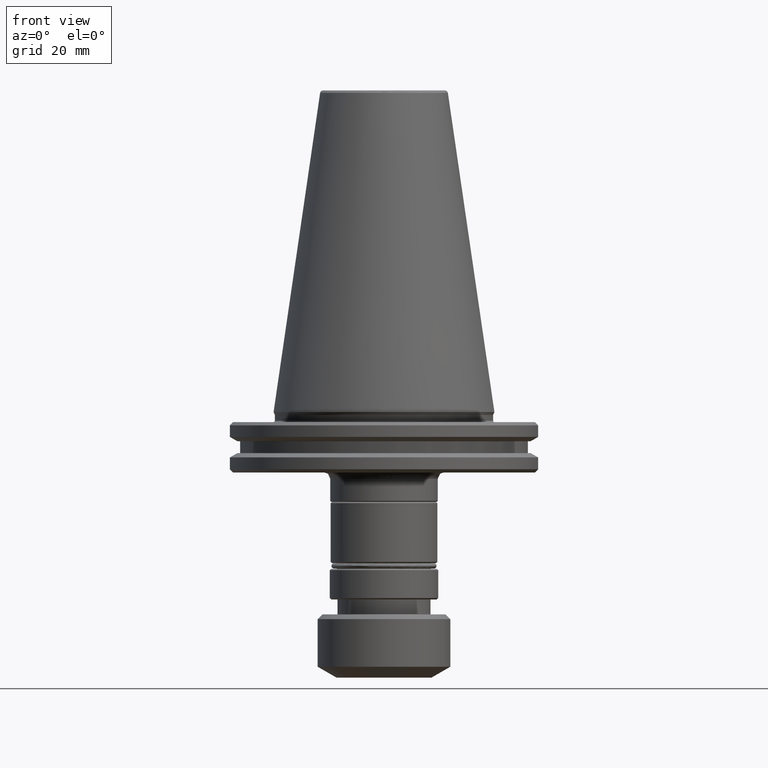
[diagram: clean part render]
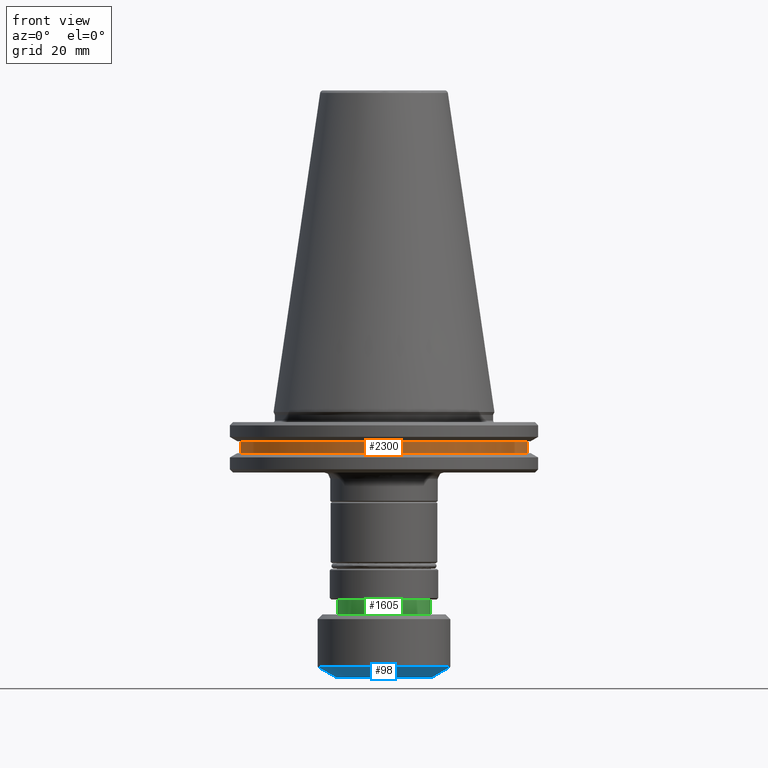
[diagram: same view with three faces highlighted in distinct colors, each labeled with its STEP entity id]
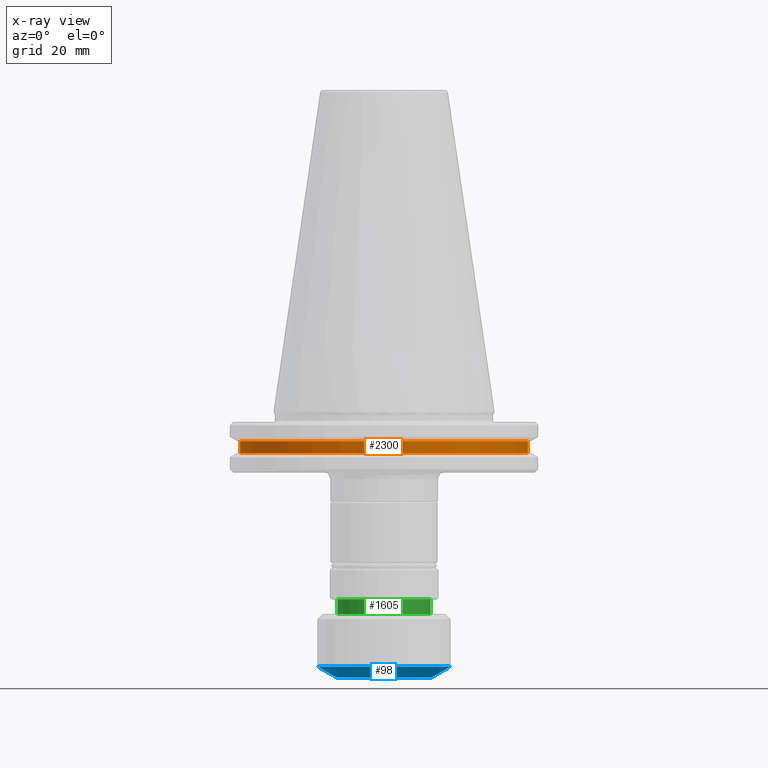
[diagram: x-ray of the same camera — body ghosted, the three highlighted faces saturated]
A machine part, front view with three faces highlighted in distinct colors.
The next image is the same camera in x-ray (body ghosted, the three faces saturated) — at least one of them is partly hidden behind the body in this view.
Their STEP definitions:

[orange] entity #2300 — the highlighted cylindrical surface (partial cylindrical patch) has radius 45.5 mm, axis along (0, 0, 1).
#62 = DIRECTION ( 'NONE',  ( 0.0000000000000000000, 0.0000000000000000000, 1.000000000000000000 ) ) ;
#74 = CARTESIAN_POINT ( 'NONE',  ( 45.50000000000000000, 0.0000000000000000000, 113.5216080541959500 ) ) ;
#115 = DIRECTION ( 'NONE',  ( 0.0000000000000000000, 0.0000000000000000000, 1.000000000000000000 ) ) ;
#148 = CARTESIAN_POINT ( 'NONE',  ( 0.0000000000000000000, 0.0000000000000000000, -9.224999999999926800 ) ) ;
#169 = VERTEX_POINT ( 'NONE', #2278 ) ;
#293 = DIRECTION ( 'NONE',  ( 0.0000000000000000000, 0.0000000000000000000, 1.000000000000000000 ) ) ;
#297 = CARTESIAN_POINT ( 'NONE',  ( -45.50000000000000000, 5.572142936120457100E-015, 113.5216080541959500 ) ) ;
#391 = EDGE_LOOP ( 'NONE', ( #785, #1447, #1182, #2147 ) ) ;
#699 = LINE ( 'NONE', #74, #1954 ) ;
#703 = EDGE_CURVE ( 'NONE', #169, #1968, #1484, .T. ) ;
#757 = VERTEX_POINT ( 'NONE', #940 ) ;
#759 = CYLINDRICAL_SURFACE ( 'NONE', #1958, 45.50000000000000000 ) ;
#785 = ORIENTED_EDGE ( 'NONE', *, *, #1149, .F. ) ;
#940 = CARTESIAN_POINT ( 'NONE',  ( 45.50000000000109400, 0.0000000000000000000, -9.224999999999926800 ) ) ;
#953 = DIRECTION ( 'NONE',  ( 1.000000000000000000, 0.0000000000000000000, 0.0000000000000000000 ) ) ;
#955 = DIRECTION ( 'NONE',  ( -0.0000000000000000000, -0.0000000000000000000, 1.000000000000000000 ) ) ;
#958 = CARTESIAN_POINT ( 'NONE',  ( 0.0000000000000000000, 0.0000000000000000000, -12.97499999999995900 ) ) ;
#1028 = CARTESIAN_POINT ( 'NONE',  ( 45.50000000000109400, 0.0000000000000000000, -12.97499999999995900 ) ) ;
#1149 = EDGE_CURVE ( 'NONE', #169, #2248, #1390, .T. ) ;
#1182 = ORIENTED_EDGE ( 'NONE', *, *, #1325, .T. ) ;
#1193 = FACE_OUTER_BOUND ( 'NONE', #391, .T. ) ;
#1225 = CIRCLE ( 'NONE', #2047, 45.50000000000109400 ) ;
#1283 = DIRECTION ( 'NONE',  ( 1.000000000000000000, 0.0000000000000000000, 0.0000000000000000000 ) ) ;
#1325 = EDGE_CURVE ( 'NONE', #1968, #757, #699, .T. ) ;
#1390 = LINE ( 'NONE', #297, #2240 ) ;
#1419 = AXIS2_PLACEMENT_3D ( 'NONE', #958, #955, #953 ) ;
#1447 = ORIENTED_EDGE ( 'NONE', *, *, #703, .T. ) ;
#1484 = CIRCLE ( 'NONE', #1419, 45.50000000000109400 ) ;
#1707 = DIRECTION ( 'NONE',  ( -0.0000000000000000000, -0.0000000000000000000, 1.000000000000000000 ) ) ;
#1754 = EDGE_CURVE ( 'NONE', #2248, #757, #1225, .T. ) ;
#1823 = CARTESIAN_POINT ( 'NONE',  ( 0.0000000000000000000, 0.0000000000000000000, 113.5216080541959500 ) ) ;
#1875 = DIRECTION ( 'NONE',  ( 1.000000000000000000, 0.0000000000000000000, 0.0000000000000000000 ) ) ;
#1954 = VECTOR ( 'NONE', #62, 1000.000000000000000 ) ;
#1958 = AXIS2_PLACEMENT_3D ( 'NONE', #1823, #115, #1875 ) ;
#1968 = VERTEX_POINT ( 'NONE', #1028 ) ;
#1984 = CARTESIAN_POINT ( 'NONE',  ( -45.50000000000110100, 5.572142936120592000E-015, -9.224999999999926800 ) ) ;
#2047 = AXIS2_PLACEMENT_3D ( 'NONE', #148, #1707, #1283 ) ;
#2147 = ORIENTED_EDGE ( 'NONE', *, *, #1754, .F. ) ;
#2240 = VECTOR ( 'NONE', #293, 1000.000000000000000 ) ;
#2248 = VERTEX_POINT ( 'NONE', #1984 ) ;
#2278 = CARTESIAN_POINT ( 'NONE',  ( -45.50000000000110100, 5.572142936120592000E-015, -12.97499999999995900 ) ) ;
#2300 = ADVANCED_FACE ( 'NONE', ( #1193 ), #759, .T. ) ;

[blue] entity #98 — the highlighted conical surface has half-angle 60 deg.
#25 = AXIS2_PLACEMENT_3D ( 'NONE', #2063, #1750, #1575 ) ;
#81 = CARTESIAN_POINT ( 'NONE',  ( -15.00000000000000000, 2.204364238465235400E-015, -84.00000000000000000 ) ) ;
#87 = EDGE_CURVE ( 'NONE', #1333, #528, #826, .T. ) ;
#90 = ORIENTED_EDGE ( 'NONE', *, *, #287, .T. ) ;
#94 = ORIENTED_EDGE ( 'NONE', *, *, #1062, .F. ) ;
#98 = ADVANCED_FACE ( 'NONE', ( #641 ), #1749, .T. ) ;
#197 = EDGE_CURVE ( 'NONE', #1333, #1640, #1258, .T. ) ;
#287 = EDGE_CURVE ( 'NONE', #1640, #1982, #2316, .T. ) ;
#320 = CARTESIAN_POINT ( 'NONE',  ( 15.00000000000000000, 0.0000000000000000000, -84.00000000000000000 ) ) ;
#325 = DIRECTION ( 'NONE',  ( 1.000000000000000000, 0.0000000000000000000, 0.0000000000000000000 ) ) ;
#326 = DIRECTION ( 'NONE',  ( 0.0000000000000000000, 0.0000000000000000000, 1.000000000000000000 ) ) ;
#327 = CARTESIAN_POINT ( 'NONE',  ( 0.0000000000000000000, 0.0000000000000000000, -80.53589838486220700 ) ) ;
#404 = AXIS2_PLACEMENT_3D ( 'NONE', #534, #1711, #2326 ) ;
#528 = VERTEX_POINT ( 'NONE', #1257 ) ;
#534 = CARTESIAN_POINT ( 'NONE',  ( 0.0000000000000000000, 0.0000000000000000000, -84.00000000000000000 ) ) ;
#619 = VECTOR ( 'NONE', #1748, 1000.000000000000100 ) ;
#641 = FACE_OUTER_BOUND ( 'NONE', #2090, .T. ) ;
#817 = ORIENTED_EDGE ( 'NONE', *, *, #87, .F. ) ;
#826 = LINE ( 'NONE', #1900, #619 ) ;
#855 = CARTESIAN_POINT ( 'NONE',  ( 21.00000000000000400, 0.0000000000000000000, -80.53589838486220700 ) ) ;
#1062 = EDGE_CURVE ( 'NONE', #528, #1982, #1768, .T. ) ;
#1257 = CARTESIAN_POINT ( 'NONE',  ( -21.00000000000000400, 2.571758278209442100E-015, -80.53589838486220700 ) ) ;
#1258 = CIRCLE ( 'NONE', #404, 15.00000000000000000 ) ;
#1333 = VERTEX_POINT ( 'NONE', #81 ) ;
#1336 = ORIENTED_EDGE ( 'NONE', *, *, #197, .T. ) ;
#1547 = DIRECTION ( 'NONE',  ( 0.8660254037844360400, 0.0000000000000000000, 0.5000000000000044400 ) ) ;
#1548 = CARTESIAN_POINT ( 'NONE',  ( 21.00000000000000400, 0.0000000000000000000, -80.53589838486220700 ) ) ;
#1575 = DIRECTION ( 'NONE',  ( 1.000000000000000000, 0.0000000000000000000, 0.0000000000000000000 ) ) ;
#1640 = VERTEX_POINT ( 'NONE', #320 ) ;
#1711 = DIRECTION ( 'NONE',  ( 0.0000000000000000000, -0.0000000000000000000, 1.000000000000000000 ) ) ;
#1748 = DIRECTION ( 'NONE',  ( -0.8660254037844360400, 1.060575238724903600E-016, 0.5000000000000044400 ) ) ;
#1749 = CONICAL_SURFACE ( 'NONE', #25, 21.00000000000000400, 1.047197551196592500 ) ;
#1750 = DIRECTION ( 'NONE',  ( 0.0000000000000000000, -0.0000000000000000000, 1.000000000000000000 ) ) ;
#1768 = CIRCLE ( 'NONE', #1987, 21.00000000000000000 ) ;
#1900 = CARTESIAN_POINT ( 'NONE',  ( -21.00000000000000400, 2.571758278209442100E-015, -80.53589838486220700 ) ) ;
#1931 = VECTOR ( 'NONE', #1547, 1000.000000000000100 ) ;
#1982 = VERTEX_POINT ( 'NONE', #855 ) ;
#1987 = AXIS2_PLACEMENT_3D ( 'NONE', #327, #326, #325 ) ;
#2063 = CARTESIAN_POINT ( 'NONE',  ( 0.0000000000000000000, 0.0000000000000000000, -80.53589838486220700 ) ) ;
#2090 = EDGE_LOOP ( 'NONE', ( #817, #1336, #90, #94 ) ) ;
#2316 = LINE ( 'NONE', #1548, #1931 ) ;
#2326 = DIRECTION ( 'NONE',  ( 1.000000000000000000, 0.0000000000000000000, 0.0000000000000000000 ) ) ;

[green] entity #1605 — the highlighted cylindrical surface (partial cylindrical patch) has radius 14.7 mm, axis along (0, 0, 1).
#100 = ORIENTED_EDGE ( 'NONE', *, *, #2205, .T. ) ;
#227 = CARTESIAN_POINT ( 'NONE',  ( 14.69999999999999900, 0.0000000000000000000, 0.0000000000000000000 ) ) ;
#252 = LINE ( 'NONE', #381, #1661 ) ;
#258 = AXIS2_PLACEMENT_3D ( 'NONE', #749, #737, #728 ) ;
#278 = CARTESIAN_POINT ( 'NONE',  ( -14.69999999999999900, 1.800230794746609100E-015, -64.00000000000000000 ) ) ;
#319 = CYLINDRICAL_SURFACE ( 'NONE', #1624, 14.69999999999999900 ) ;
#381 = CARTESIAN_POINT ( 'NONE',  ( -14.69999999999999900, 1.800230794746609100E-015, 0.0000000000000000000 ) ) ;
#382 = DIRECTION ( 'NONE',  ( 0.0000000000000000000, 0.0000000000000000000, 1.000000000000000000 ) ) ;
#446 = VERTEX_POINT ( 'NONE', #1294 ) ;
#518 = CARTESIAN_POINT ( 'NONE',  ( 0.0000000000000000000, 0.0000000000000000000, -59.30000000000001800 ) ) ;
#727 = CIRCLE ( 'NONE', #1719, 14.69999999999999900 ) ;
#728 = DIRECTION ( 'NONE',  ( 1.000000000000000000, 0.0000000000000000000, 0.0000000000000000000 ) ) ;
#737 = DIRECTION ( 'NONE',  ( 0.0000000000000000000, 0.0000000000000000000, 1.000000000000000000 ) ) ;
#749 = CARTESIAN_POINT ( 'NONE',  ( 0.0000000000000000000, 0.0000000000000000000, -64.00000000000000000 ) ) ;
#1018 = EDGE_CURVE ( 'NONE', #1183, #1925, #252, .T. ) ;
#1096 = ORIENTED_EDGE ( 'NONE', *, *, #2011, .T. ) ;
#1134 = VECTOR ( 'NONE', #2119, 1000.000000000000000 ) ;
#1167 = EDGE_LOOP ( 'NONE', ( #2040, #1096, #100, #2130 ) ) ;
#1183 = VERTEX_POINT ( 'NONE', #278 ) ;
#1294 = CARTESIAN_POINT ( 'NONE',  ( 14.69999999999999900, 0.0000000000000000000, -64.00000000000000000 ) ) ;
#1313 = CARTESIAN_POINT ( 'NONE',  ( -14.69999999999999900, 1.800230794746609100E-015, -59.30000000000001800 ) ) ;
#1356 = LINE ( 'NONE', #227, #1134 ) ;
#1537 = DIRECTION ( 'NONE',  ( 0.0000000000000000000, 0.0000000000000000000, 1.000000000000000000 ) ) ;
#1565 = CIRCLE ( 'NONE', #258, 14.69999999999999900 ) ;
#1605 = ADVANCED_FACE ( 'NONE', ( #1886 ), #319, .T. ) ;
#1624 = AXIS2_PLACEMENT_3D ( 'NONE', #2029, #1537, #1763 ) ;
#1661 = VECTOR ( 'NONE', #382, 1000.000000000000000 ) ;
#1682 = CARTESIAN_POINT ( 'NONE',  ( 14.69999999999999900, 0.0000000000000000000, -59.30000000000001800 ) ) ;
#1719 = AXIS2_PLACEMENT_3D ( 'NONE', #518, #1892, #2050 ) ;
#1763 = DIRECTION ( 'NONE',  ( 1.000000000000000000, 0.0000000000000000000, 0.0000000000000000000 ) ) ;
#1886 = FACE_OUTER_BOUND ( 'NONE', #1167, .T. ) ;
#1892 = DIRECTION ( 'NONE',  ( 0.0000000000000000000, 0.0000000000000000000, 1.000000000000000000 ) ) ;
#1925 = VERTEX_POINT ( 'NONE', #1313 ) ;
#2011 = EDGE_CURVE ( 'NONE', #1183, #446, #1565, .T. ) ;
#2029 = CARTESIAN_POINT ( 'NONE',  ( 0.0000000000000000000, 0.0000000000000000000, 0.0000000000000000000 ) ) ;
#2040 = ORIENTED_EDGE ( 'NONE', *, *, #1018, .F. ) ;
#2050 = DIRECTION ( 'NONE',  ( 1.000000000000000000, 0.0000000000000000000, 0.0000000000000000000 ) ) ;
#2119 = DIRECTION ( 'NONE',  ( 0.0000000000000000000, 0.0000000000000000000, 1.000000000000000000 ) ) ;
#2130 = ORIENTED_EDGE ( 'NONE', *, *, #2382, .F. ) ;
#2167 = VERTEX_POINT ( 'NONE', #1682 ) ;
#2205 = EDGE_CURVE ( 'NONE', #446, #2167, #1356, .T. ) ;
#2382 = EDGE_CURVE ( 'NONE', #1925, #2167, #727, .T. ) ;